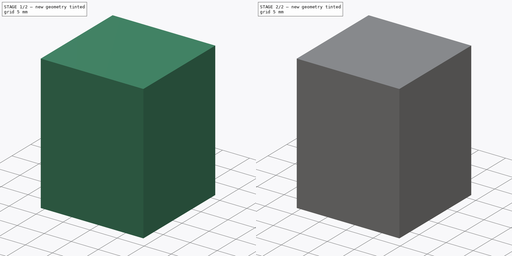
[diagram: build sequence overview — one tinted view per stage of 2, left to right]
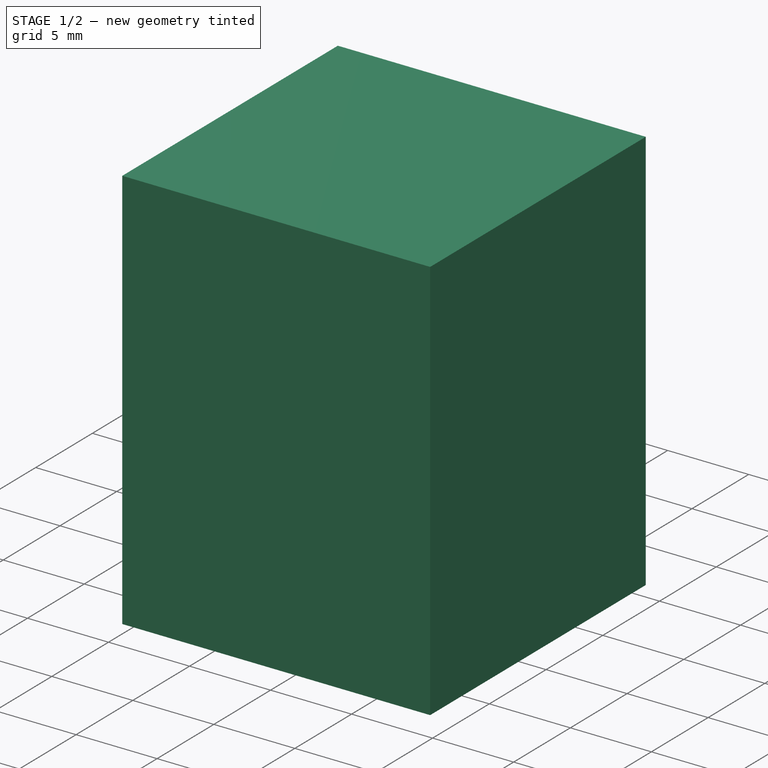
[diagram: stage 1 of 2 — iso view after this stage's code; geometry added in this stage tinted green]
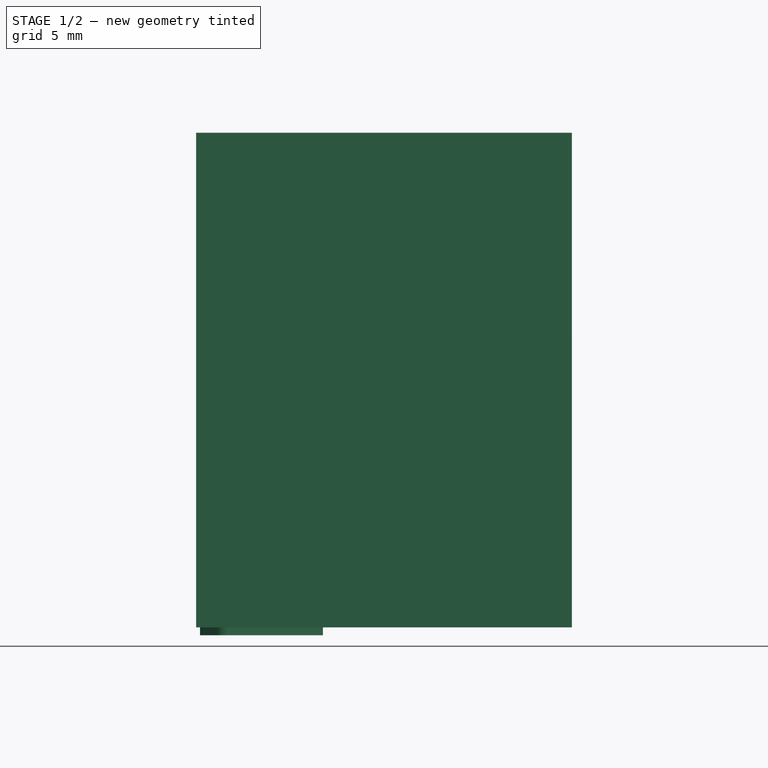
[diagram: stage 1 of 2 — front view after this stage's code; geometry added in this stage tinted green]
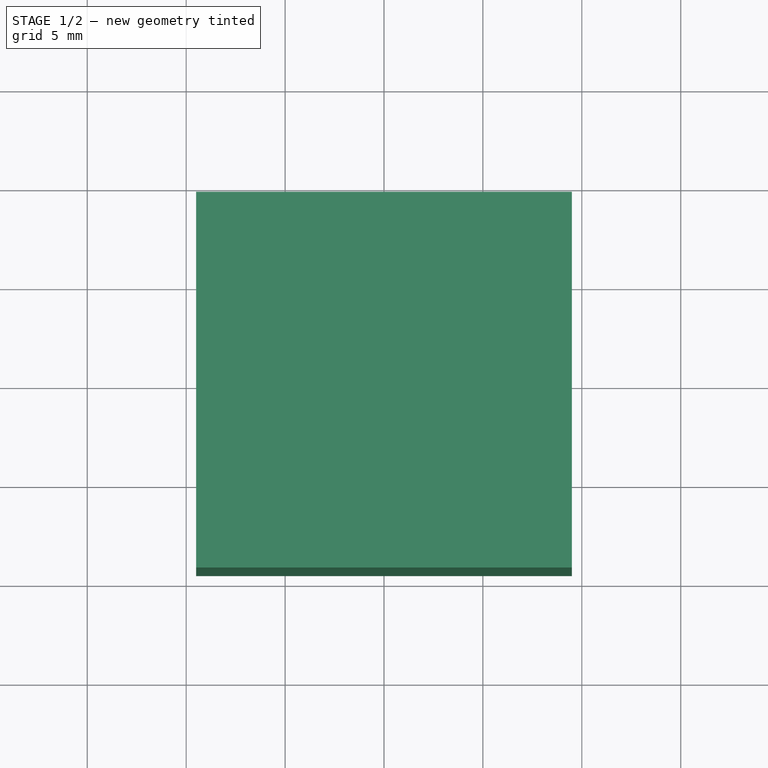
[diagram: stage 1 of 2 — top view after this stage's code; geometry added in this stage tinted green]
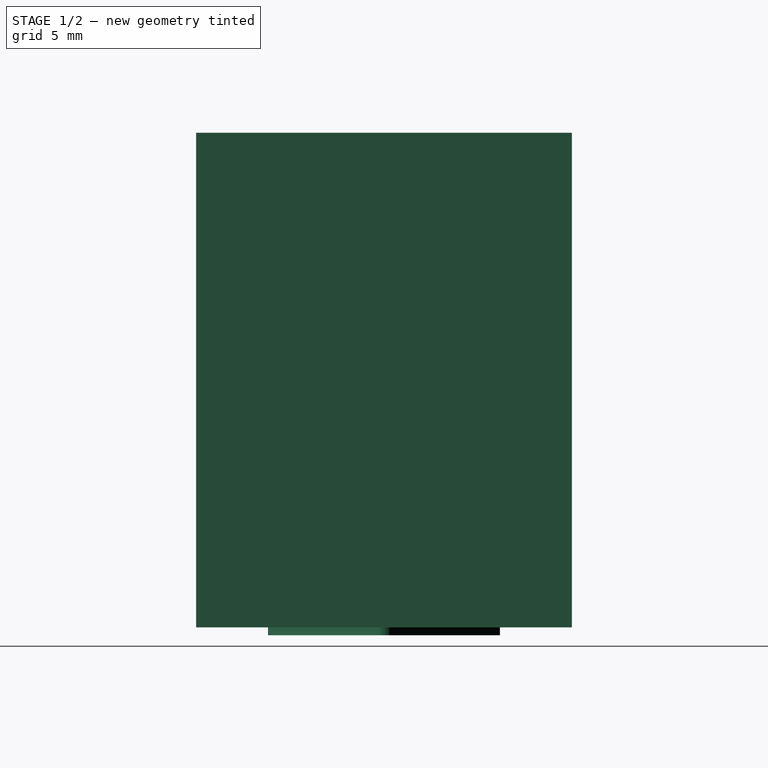
[diagram: stage 1 of 2 — right view after this stage's code; geometry added in this stage tinted green]
FCSTD DOCUMENT  (FreeCAD 0.21R33668 +26 (Git))
Label: Shifty
License: All rights reserved
LicenseURL: http://en.wikipedia.org/wiki/All_rights_reserved
objects: Sketcher::SketchObject×3, PartDesign::Pad×3, PartDesign::LinearPattern×1, PartDesign::Body×1, Part::Refine×1
note: 12 computed .brp shape members not serialized (recipe doc carries the construction recipe); baked Part::Feature solids carry a one-line shape summary decoded from their .brp

FEATURE [Sketcher::SketchObject] Sketch
  FullyConstrained = true
  MapMode = 5
  Support = -> [XY_Plane]
  sketch-geometry (4):
    g0: LineSegment StartX=-9.5 StartY=9.5 StartZ=0 EndX=9.5 EndY=9.5 EndZ=0
    g1: LineSegment StartX=9.5 StartY=9.5 StartZ=0 EndX=9.5 EndY=-9.5 EndZ=0
    g2: LineSegment StartX=9.5 StartY=-9.5 StartZ=0 EndX=-9.5 EndY=-9.5 EndZ=0
    g3: LineSegment StartX=-9.5 StartY=-9.5 StartZ=0 EndX=-9.5 EndY=9.5 EndZ=0
  constraints (11):
    c: Coincident(g0,g1)
    c: Coincident(g1,g2)
    c: Coincident(g2,g3)
    c: Coincident(g3,g0)
    c: Horizontal(g0)
    c: Horizontal(g2)
    c: Vertical(g1)
    c: Vertical(g3)
    c: Symmetric(g0,g1,g-1)
    c: Equal(g3,g0)
    c: DistanceX(g0,g0) = 19
FEATURE [Sketcher::SketchObject] Sketch001
  FullyConstrained = false
  MapMode = 5
  Support = -> [XY_Plane]
  sketch-geometry (18):
    g0: LineSegment StartX=-9.5 StartY=9.5 StartZ=0 EndX=9.5 EndY=9.5 EndZ=0
    g1: LineSegment StartX=9.5 StartY=9.5 StartZ=0 EndX=9.5 EndY=-9.5 EndZ=0
    g2: LineSegment StartX=9.5 StartY=-9.5 StartZ=0 EndX=-9.5 EndY=-9.5 EndZ=0
    g3: LineSegment StartX=-9.5 StartY=-9.5 StartZ=0 EndX=-9.5 EndY=9.5 EndZ=0
    g4: LineSegment StartX=-9.18334 StartY=4.33111 StartZ=0 EndX=-5.81879 EndY=0.321394 EndZ=0
    g5: LineSegment StartX=-5.81879 StartY=-0.321394 StartZ=0 EndX=-9.18334 EndY=-4.33111 EndZ=0
    g6: LineSegment StartX=-9.15387 StartY=-5.00606 StartZ=0 EndX=-8.44407 EndY=-5.71586 EndZ=0
    g7: LineSegment StartX=-7.70749 StartY=-5.6837 StartZ=0 EndX=-3.20798 EndY=-0.321394 EndZ=0
    g8: LineSegment StartX=-3.20798 StartY=0.321394 StartZ=0 EndX=-7.70749 EndY=5.6837 EndZ=0
    g9: LineSegment StartX=-8.44407 StartY=5.71586 StartZ=0 EndX=-9.15387 EndY=5.00606 EndZ=0
    g10: ArcOfCircle CenterX=-8.80032 CenterY=4.6525 CenterZ=0 NormalX=0 NormalY=0 NormalZ=1 AngleXU=0 Radius=0.5 StartAngle=2.35619 EndAngle=3.83972
    g11: ArcOfCircle CenterX=-8.09051 CenterY=5.36231 CenterZ=0 NormalX=0 NormalY=0 NormalZ=1 AngleXU=0 Radius=0.5 StartAngle=0.698132 EndAngle=2.35619
    g12: ArcOfCircle CenterX=-8.80032 CenterY=-4.6525 CenterZ=0 NormalX=0 NormalY=0 NormalZ=1 AngleXU=0 Radius=0.5 StartAngle=2.44346 EndAngle=3.92699
    g13: ArcOfCircle CenterX=-8.09051 CenterY=-5.36231 CenterZ=0 NormalX=0 NormalY=0 NormalZ=1 AngleXU=0 Radius=0.5 StartAngle=3.92699 EndAngle=5.58505
    g14: ArcOfCircle CenterX=-3.591 CenterY=-2.4e-15 CenterZ=0 NormalX=0 NormalY=0 NormalZ=1 AngleXU=0 Radius=0.5 StartAngle=5.58505 EndAngle=6.98132
    g15: GeomPoint X=-2.9383 Y=-2.7e-15 Z=0
    g16: ArcOfCircle CenterX=-6.20181 CenterY=0 CenterZ=0 NormalX=0 NormalY=0 NormalZ=1 AngleXU=0 Radius=0.5 StartAngle=5.58505 EndAngle=6.98132
    g17: GeomPoint X=-5.54911 Y=-2.7e-15 Z=0
  constraints (44):
    c: Coincident(g0,g1)
    c: Coincident(g1,g2)
    c: Coincident(g2,g3)
    c: Coincident(g3,g0)
    c: Horizontal(g0)
    c: Horizontal(g2)
    c: Vertical(g1)
    c: Vertical(g3)
    c: Symmetric(g0,g1,g-1)
    c: Equal(g3,g0)
    c: DistanceX(g0,g0) = 19
    c: Tangent(g9,g10) = -1.5708
    c: Tangent(g4,g10) = -1.5708
    c: Tangent(g9,g11) = -1.5708
    c: Tangent(g8,g11) = -1.5708
    c: Tangent(g5,g12) = -1.5708
    c: Tangent(g6,g12) = -1.5708
    c: Tangent(g7,g13) = -1.5708
    c: Tangent(g6,g13) = -1.5708
    c: Equal(g12,g13)
    c: Equal(g12,g10)
    c: Equal(g11,g10)
    c: Horizontal(g17,g15)
    c: Equal(g9,g6)
    c: Distance(g17,g7) = 2
    c: Parallel(g4,g8)
    c: Parallel(g5,g7)
    c: Angle(g-1,g9) = 0.785398
    c: Angle(g6,g-1) = 0.785398
    c: PointOnObject(g15,g8)
    c: PointOnObject(g15,g7)
    c: Tangent(g8,g14) = -1.5708
    c: Tangent(g7,g14) = -1.5708
    c: Radius(g14) = 0.5
    c: PointOnObject(g17,g4)
    c: PointOnObject(g17,g5)
    c: Tangent(g4,g16) = 1.5708
    c: Tangent(g5,g16) = 1.5708
    c: Equal(g16,g14)
    c: Equal(g4,g5)
    c: Angle(g-1,g8) = 2.26893
    c: Horizontal(g16,g-1)
    c: Radius(g11) = 0.5
    c: Distance(g8) = 7
FEATURE [PartDesign::Pad] Pad
  Direction = (0,0,1)
  Length = 25
  Length2 = 10
  Profile = -> Sketch
  ReferenceAxis = -> Sketch [N_Axis]
  Type = 0
FEATURE [PartDesign::Pad] Pad001
  BaseFeature = -> Pad
  Direction = (0,0,1)
  Length = 0.4
  Length2 = 10
  Profile = -> Sketch001
  ReferenceAxis = -> Sketch001 [N_Axis]
  Reversed = true
  Type = 0
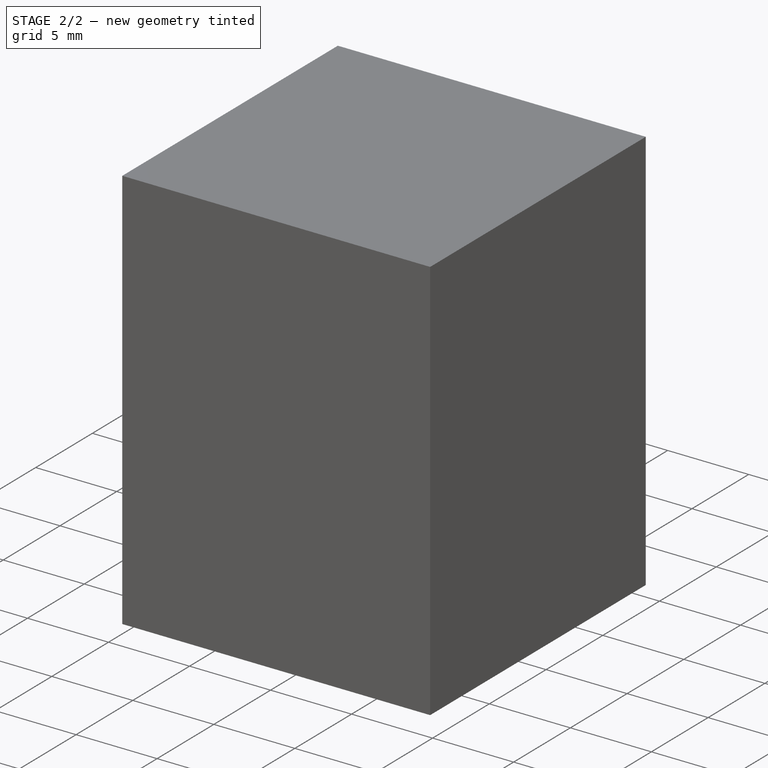
[diagram: stage 2 of 2 — iso view after this stage's code; geometry added in this stage tinted green]
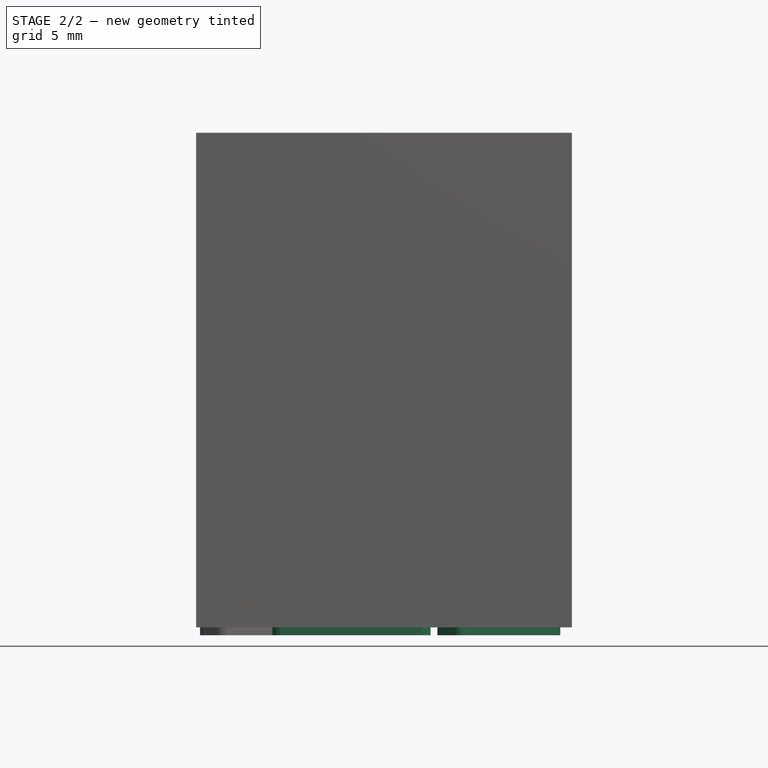
[diagram: stage 2 of 2 — front view after this stage's code; geometry added in this stage tinted green]
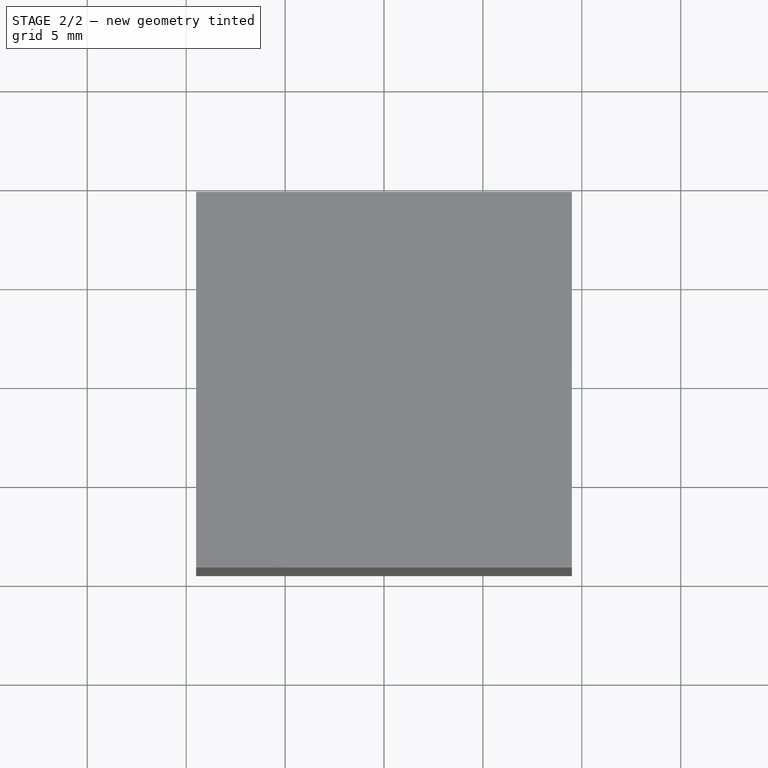
[diagram: stage 2 of 2 — top view after this stage's code; geometry added in this stage tinted green]
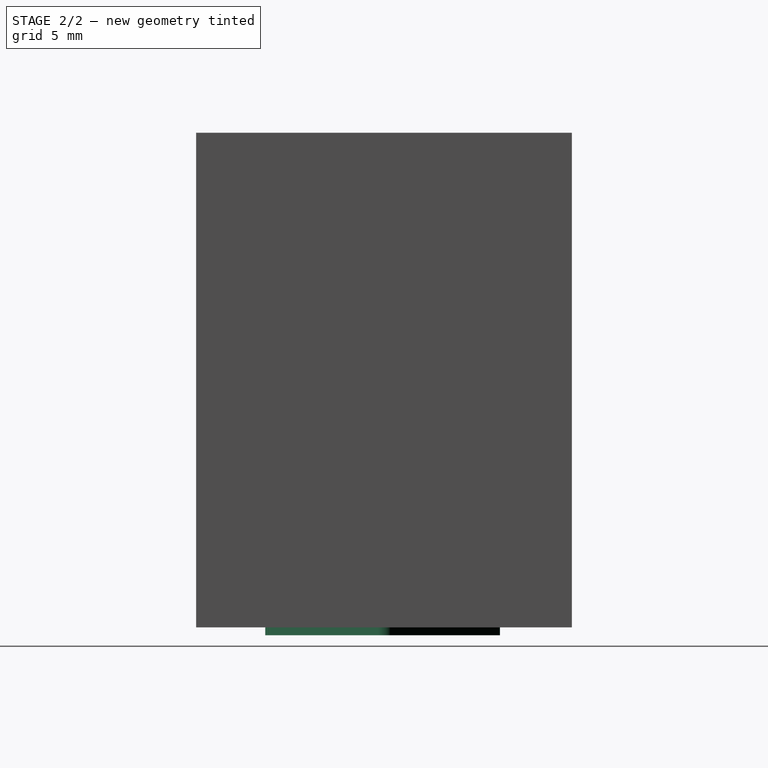
[diagram: stage 2 of 2 — right view after this stage's code; geometry added in this stage tinted green]
FEATURE [PartDesign::LinearPattern] LinearPattern
  BaseFeature = -> Pad001
  Direction = -> Sketch001 [H_Axis]
  Length = 12
  Occurrences = 2
  Originals = -> [Pad001]
FEATURE [Sketcher::SketchObject] Sketch002
  FullyConstrained = true
  MapMode = 5
  Placement = pos=(0,0,0) rot=(1,0,0;3.14159rad)
  sketch-geometry (10):
    g0: ArcOfCircle CenterX=-5.15 CenterY=5.5 CenterZ=0 NormalX=0 NormalY=0 NormalZ=1 AngleXU=0 Radius=0.5 StartAngle=1.5708 EndAngle=3.14159
    g1: LineSegment StartX=-5.15 StartY=6 StartZ=0 EndX=1.85 EndY=6 EndZ=0
    g2: ArcOfCircle CenterX=1.85 CenterY=5.5 CenterZ=0 NormalX=0 NormalY=0 NormalZ=1 AngleXU=0 Radius=0.5 StartAngle=8e-16 EndAngle=1.5708
    g3: LineSegment StartX=2.35 StartY=5.5 StartZ=0 EndX=2.35 EndY=4.5 EndZ=0
    g4: ArcOfCircle CenterX=1.85 CenterY=4.5 CenterZ=0 NormalX=0 NormalY=0 NormalZ=1 AngleXU=0 Radius=0.5 StartAngle=4.71239 EndAngle=6.28319
    g5: LineSegment StartX=1.85 StartY=4 StartZ=0 EndX=-5.15 EndY=4 EndZ=0
    g6: ArcOfCircle CenterX=-5.15 CenterY=4.5 CenterZ=0 NormalX=0 NormalY=0 NormalZ=1 AngleXU=0 Radius=0.5 StartAngle=3.14159 EndAngle=4.71239
    g7: LineSegment StartX=-5.65 StartY=4.5 StartZ=0 EndX=-5.65 EndY=5.5 EndZ=0
    g8: GeomPoint X=-5.65 Y=6 Z=0
    g9: GeomPoint X=2.35 Y=4 Z=0
  constraints (24):
    c: Tangent(g0,g1) = 1.5708
    c: Tangent(g1,g2) = 1.5708
    c: Tangent(g2,g3) = 1.5708
    c: Tangent(g3,g4) = 1.5708
    c: Tangent(g4,g5) = 1.5708
    c: Tangent(g5,g6) = 1.5708
    c: Tangent(g6,g7) = 1.5708
    c: Tangent(g7,g0) = 1.5708
    c: Horizontal(g1)
    c: Horizontal(g5)
    c: Vertical(g3)
    c: Vertical(g7)
    c: Equal(g0,g2)
    c: Equal(g2,g4)
    c: Equal(g4,g6)
    c: PointOnObject(g8,g1)
    c: PointOnObject(g8,g7)
    c: PointOnObject(g9,g3)
    c: PointOnObject(g9,g5)
    c: Radius(g2) = 0.5
    c: DistanceY(g4,g1) = 2
    c: DistanceX(g1,g1) = 7
    c: DistanceX(g-1,g1) = 1.85
    c: DistanceY(g-1,g4) = 4
FEATURE [PartDesign::Pad] Pad002
  BaseFeature = -> LinearPattern
  Direction = (0,0,-1)
  Length = 0.4
  Length2 = 10
  Profile = -> Sketch002
  ReferenceAxis = -> Sketch002 [N_Axis]
  Type = 0
FEATURE [PartDesign::Body] Body  label="ShiftyStamp"
  Group = -> [Sketch,Pad,Sketch001,Pad001,LinearPattern,Sketch002,Pad002]
  Origin = -> Origin
  Tip = -> Pad002
FEATURE [Part::Refine] Body001  label="ShiftyStampR"
  Source = -> Body
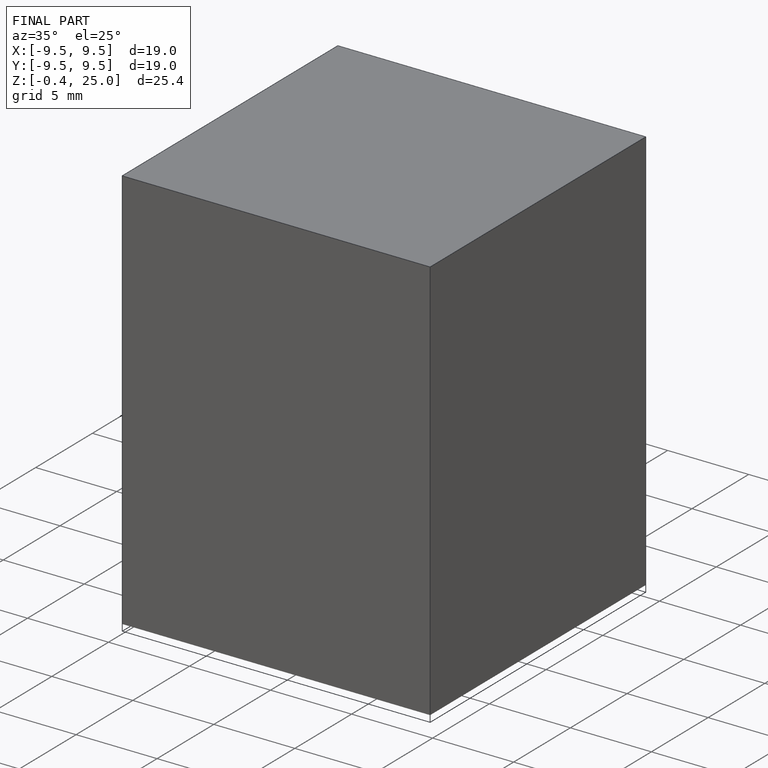
[diagram: finished part — iso view with bounding-box wireframe]
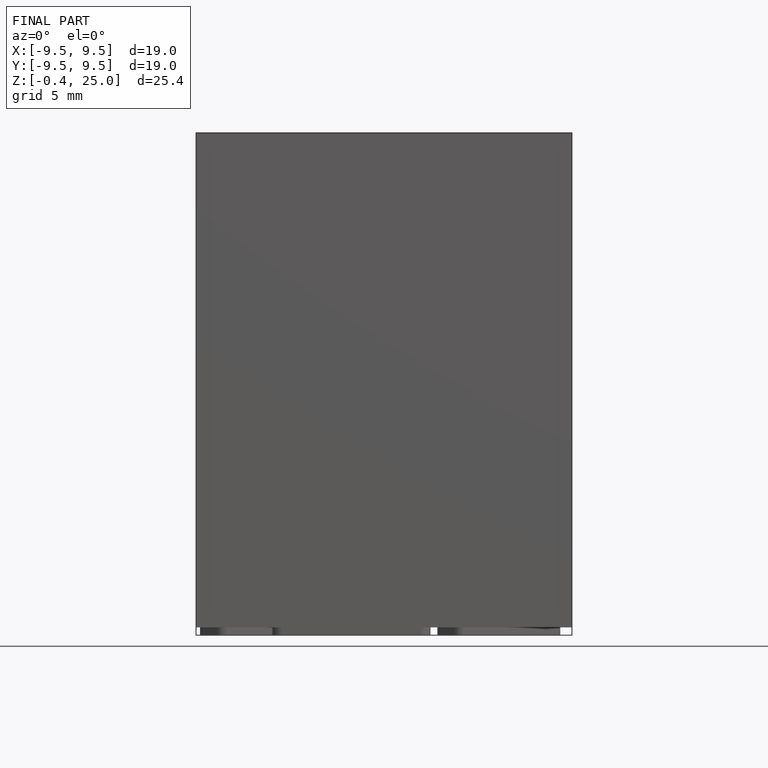
[diagram: finished part — front view with bounding-box wireframe]
